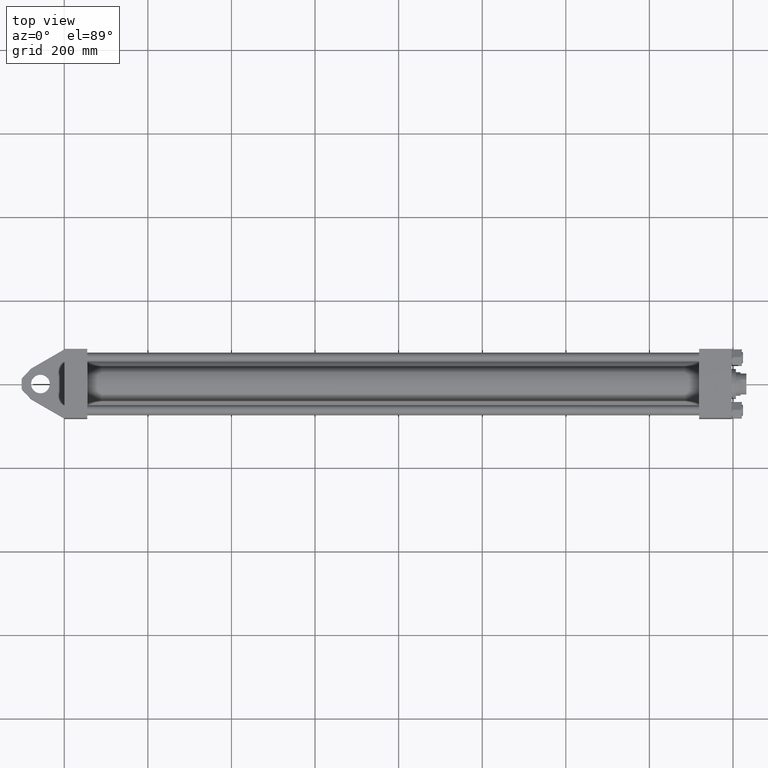
[diagram: clean part render]
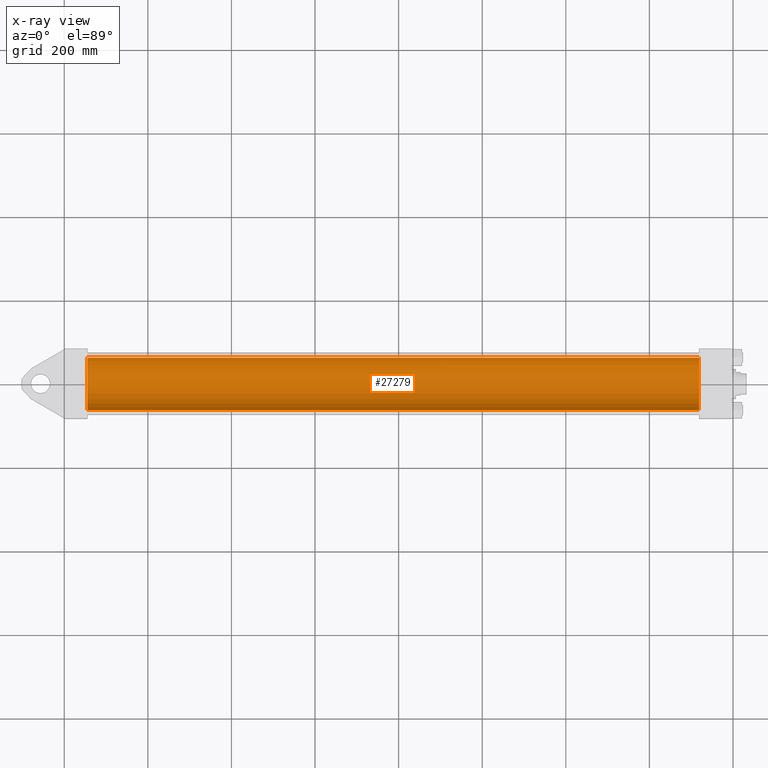
[diagram: x-ray — body ghosted, one internal face saturated and labeled with its STEP entity id]
A machine part, top view, then the same camera in x-ray: the body is ghosted and one INTERNAL B-rep face — a face not visible from any outside direction — is saturated and labeled: STEP entity #27279.
In plain terms, the highlighted cylindrical surface (edge-blend (fillet) strip) has radius 62.5 mm, axis along (-1, -0, 0).
Its self-contained STEP definition (entity closure, byte-faithful):
#601 = EDGE_LOOP ( 'NONE', ( #23215, #4068, #32793, #28882 ) ) ;
#1304 = VECTOR ( 'NONE', #16055, 1000.000000000000000 ) ;
#2378 = CIRCLE ( 'NONE', #11418, 62.50000000000000000 ) ;
#2419 = VERTEX_POINT ( 'NONE', #30835 ) ;
#2495 = DIRECTION ( 'NONE',  ( 0.000000000000000000, 0.000000000000000000, 1.000000000000000000 ) ) ;
#2725 = FACE_OUTER_BOUND ( 'NONE', #601, .T. ) ;
#4068 = ORIENTED_EDGE ( 'NONE', *, *, #18170, .T. ) ;
#4454 = LINE ( 'NONE', #14582, #29868 ) ;
#7413 = VERTEX_POINT ( 'NONE', #38309 ) ;
#7517 = DIRECTION ( 'NONE',  ( -1.000000000000000000, -0.000000000000000000, -0.000000000000000000 ) ) ;
#7578 = LINE ( 'NONE', #12521, #1304 ) ;
#11418 = AXIS2_PLACEMENT_3D ( 'NONE', #36152, #21547, #46294 ) ;
#12521 = CARTESIAN_POINT ( 'NONE',  ( 1519.000000000000000, 5.051957280705747162E-15, -62.50000000000000000 ) ) ;
#14108 = EDGE_CURVE ( 'NONE', #34193, #33126, #4454, .T. ) ;
#14582 = CARTESIAN_POINT ( 'NONE',  ( 1519.000000000000000, -2.602085213965210642E-15, 62.50000000000000000 ) ) ;
#16055 = DIRECTION ( 'NONE',  ( -1.000000000000000000, -0.000000000000000000, -0.000000000000000000 ) ) ;
#18170 = EDGE_CURVE ( 'NONE', #7413, #2419, #7578, .T. ) ;
#18829 = AXIS2_PLACEMENT_3D ( 'NONE', #37112, #25809, #22502 ) ;
#20402 = CARTESIAN_POINT ( 'NONE',  ( 1519.000000000000000, -2.602085213965210642E-15, 0.000000000000000000 ) ) ;
#21547 = DIRECTION ( 'NONE',  ( 1.000000000000000000, 0.000000000000000000, 0.000000000000000000 ) ) ;
#22502 = DIRECTION ( 'NONE',  ( 0.000000000000000000, 0.000000000000000000, -1.000000000000000000 ) ) ;
#23215 = ORIENTED_EDGE ( 'NONE', *, *, #24640, .T. ) ;
#24640 = EDGE_CURVE ( 'NONE', #34193, #7413, #41394, .T. ) ;
#25809 = DIRECTION ( 'NONE',  ( 1.000000000000000000, 0.000000000000000000, 0.000000000000000000 ) ) ;
#27170 = AXIS2_PLACEMENT_3D ( 'NONE', #20402, #34773, #2495 ) ;
#27279 = ADVANCED_FACE ( 'NONE', ( #2725 ), #44907, .F. ) ;
#28882 = ORIENTED_EDGE ( 'NONE', *, *, #14108, .F. ) ;
#29868 = VECTOR ( 'NONE', #7517, 1000.000000000000000 ) ;
#30835 = CARTESIAN_POINT ( 'NONE',  ( 55.00000000000000000, 5.051957280705747162E-15, -62.50000000000000000 ) ) ;
#32793 = ORIENTED_EDGE ( 'NONE', *, *, #36372, .F. ) ;
#33126 = VERTEX_POINT ( 'NONE', #45648 ) ;
#34193 = VERTEX_POINT ( 'NONE', #34760 ) ;
#34760 = CARTESIAN_POINT ( 'NONE',  ( 1519.000000000000000, -2.602085213965210642E-15, 62.50000000000000000 ) ) ;
#34773 = DIRECTION ( 'NONE',  ( -1.000000000000000000, -0.000000000000000000, -0.000000000000000000 ) ) ;
#36152 = CARTESIAN_POINT ( 'NONE',  ( 55.00000000000000000, -2.602085213965210642E-15, 0.000000000000000000 ) ) ;
#36372 = EDGE_CURVE ( 'NONE', #33126, #2419, #2378, .T. ) ;
#37112 = CARTESIAN_POINT ( 'NONE',  ( 1519.000000000000000, -2.602085213965210642E-15, 0.000000000000000000 ) ) ;
#38309 = CARTESIAN_POINT ( 'NONE',  ( 1519.000000000000000, 5.051957280705747162E-15, -62.50000000000000000 ) ) ;
#41394 = CIRCLE ( 'NONE', #18829, 62.50000000000000000 ) ;
#44907 = CYLINDRICAL_SURFACE ( 'NONE', #27170, 62.50000000000000000 ) ;
#45648 = CARTESIAN_POINT ( 'NONE',  ( 55.00000000000000000, -2.602085213965210642E-15, 62.50000000000000000 ) ) ;
#46294 = DIRECTION ( 'NONE',  ( 0.000000000000000000, 0.000000000000000000, -1.000000000000000000 ) ) ;